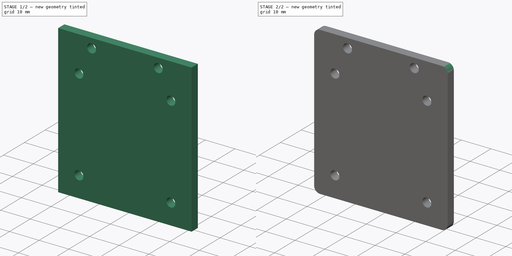
[diagram: build sequence overview — one tinted view per stage of 2, left to right]
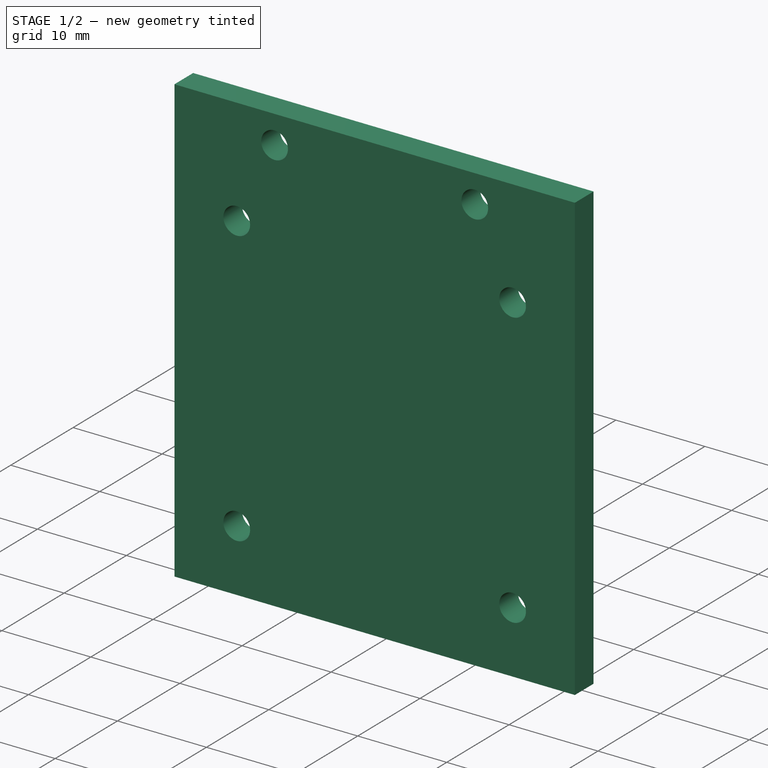
[diagram: stage 1 of 2 — iso view after this stage's code; geometry added in this stage tinted green]
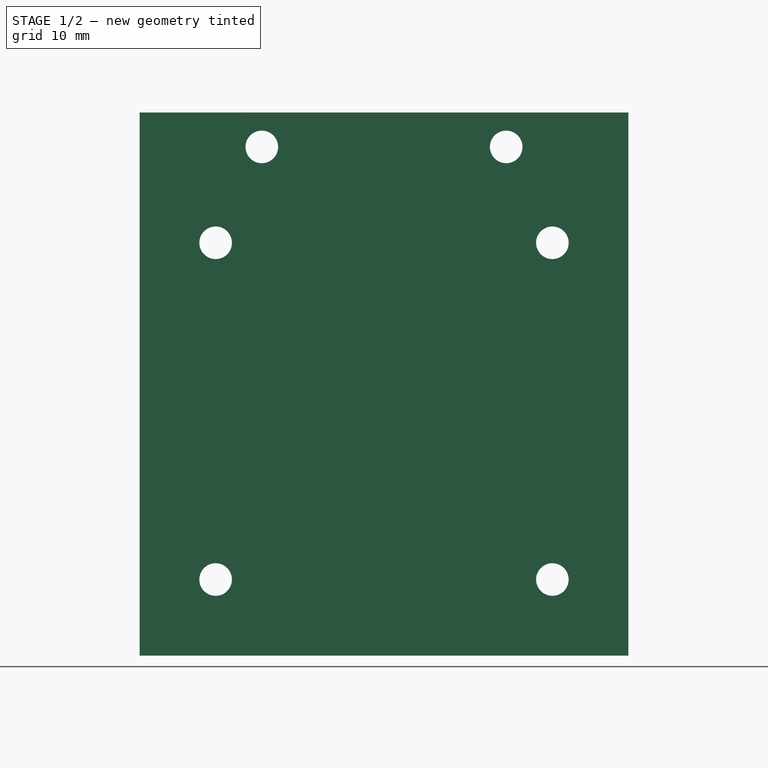
[diagram: stage 1 of 2 — front view after this stage's code; geometry added in this stage tinted green]
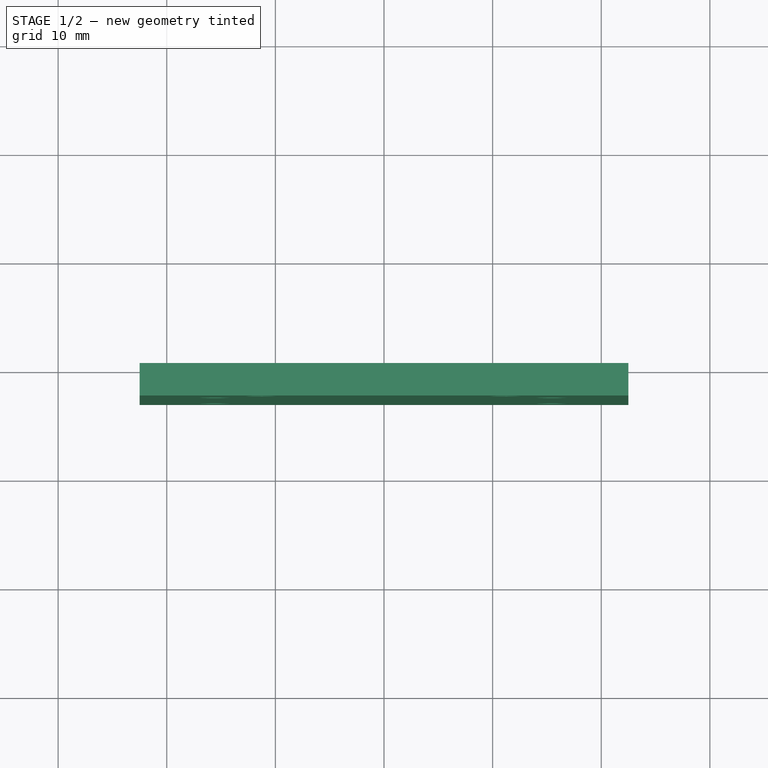
[diagram: stage 1 of 2 — top view after this stage's code; geometry added in this stage tinted green]
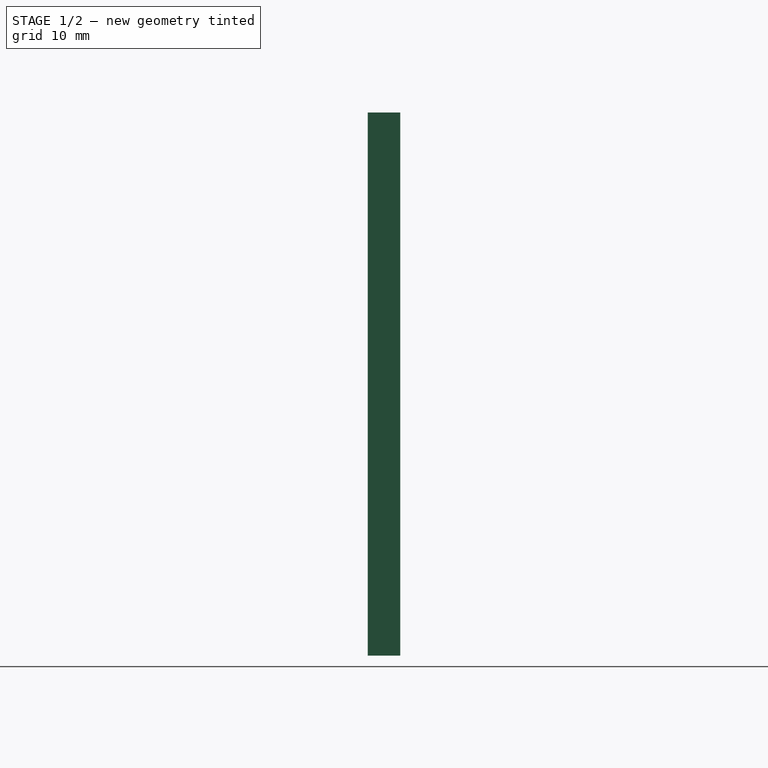
[diagram: stage 1 of 2 — right view after this stage's code; geometry added in this stage tinted green]
FCSTD DOCUMENT  (FreeCAD 1.1R20260325 (Git shallow))
Label: NEMA17 Mount
License: Creative Commons Attribution 4.0
LicenseURL: https://creativecommons.org/licenses/by/4.0/
objects: App::Point×1, Sketcher::SketchObject×1, PartDesign::Pad×1, PartDesign::Fillet×1, PartDesign::Body×1
note: 9 computed .brp shape members not serialized (recipe doc carries the construction recipe); baked Part::Feature solids carry a one-line shape summary decoded from their .brp

FEATURE [App::Point] Origin001
  Role = Origin
FEATURE [Sketcher::SketchObject] Sketch
  ArcFitTolerance = 1e-06
  AttachmentSupport = -> [Origin]
  ExternalTypes = [0]
  FullyConstrained = true
  MakeInternals = true
  MapMode = 5
  Placement = pos=(0,0,0) rot=(1,0,0;1.5708rad)
  _ExternalGeoVersion = 1
  sketch-geometry (30):
    g0: LineSegment [constr] StartX=-21.15 StartY=-21.15 StartZ=0 EndX=21.15 EndY=-21.15 EndZ=0
    g1: LineSegment [constr] StartX=21.15 StartY=-21.15 StartZ=0 EndX=21.15 EndY=21.15 EndZ=0
    g2: LineSegment [constr] StartX=21.15 StartY=21.15 StartZ=0 EndX=-21.15 EndY=21.15 EndZ=0
    g3: LineSegment [constr] StartX=-21.15 StartY=21.15 StartZ=0 EndX=-21.15 EndY=-21.15 EndZ=0
    g4: GeomPoint [constr] X=0 Y=0 Z=0
    g5: LineSegment [constr] StartX=-15.5 StartY=-15.5 StartZ=0 EndX=15.5 EndY=-15.5 EndZ=0
    g6: LineSegment [constr] StartX=15.5 StartY=-15.5 StartZ=0 EndX=15.5 EndY=15.5 EndZ=0
    g7: LineSegment [constr] StartX=15.5 StartY=15.5 StartZ=0 EndX=-15.5 EndY=15.5 EndZ=0
    g8: LineSegment [constr] StartX=-15.5 StartY=15.5 StartZ=0 EndX=-15.5 EndY=-15.5 EndZ=0
    g9: GeomPoint [constr] X=0 Y=0 Z=0
    g10: GeomPoint X=15.5 Y=15.5 Z=0
    g11: GeomPoint X=-15.5 Y=15.5 Z=0
    g12: GeomPoint X=-15.5 Y=-15.5 Z=0
    g13: GeomPoint X=15.5 Y=-15.5 Z=0
    g14: Circle CenterX=-15.5 CenterY=15.5 CenterZ=0 NormalX=0 NormalY=0 NormalZ=1 AngleXU=0 Radius=1.5
    g15: Circle CenterX=15.5 CenterY=15.5 CenterZ=0 NormalX=0 NormalY=0 NormalZ=1 AngleXU=0 Radius=1.5
    g16: Circle CenterX=15.5 CenterY=-15.5 CenterZ=0 NormalX=0 NormalY=0 NormalZ=1 AngleXU=0 Radius=1.5
    g17: Circle CenterX=-15.5 CenterY=-15.5 CenterZ=0 NormalX=0 NormalY=0 NormalZ=1 AngleXU=0 Radius=1.5
    g18: LineSegment StartX=-22.5 StartY=27.5 StartZ=0 EndX=-22.5 EndY=-22.5 EndZ=0
    g19: LineSegment StartX=-22.5 StartY=-22.5 StartZ=0 EndX=22.5 EndY=-22.5 EndZ=0
    g20: LineSegment StartX=22.5 StartY=-22.5 StartZ=0 EndX=22.5 EndY=27.5 EndZ=0
    g21: LineSegment StartX=22.5 StartY=27.5 StartZ=0 EndX=-22.5 EndY=27.5 EndZ=0
    g22: LineSegment [constr] StartX=-21.15 StartY=-21.15 StartZ=0 EndX=-22.5 EndY=-21.15 EndZ=0
    g23: LineSegment [constr] StartX=-21.15 StartY=-21.15 StartZ=0 EndX=-21.15 EndY=-22.5 EndZ=0
    g24: Circle CenterX=-11.25 CenterY=24.325 CenterZ=0 NormalX=0 NormalY=0 NormalZ=1 AngleXU=0 Radius=1.5
    g25: Circle CenterX=11.25 CenterY=24.325 CenterZ=0 NormalX=0 NormalY=0 NormalZ=1 AngleXU=0 Radius=1.5
    g26: LineSegment [constr] StartX=-11.25 StartY=24.325 StartZ=0 EndX=-22.5 EndY=24.325 EndZ=0
    g27: LineSegment [constr] StartX=-11.25 StartY=24.325 StartZ=0 EndX=0 EndY=24.325 EndZ=0
    g28: LineSegment [constr] StartX=-11.25 StartY=24.325 StartZ=0 EndX=-11.25 EndY=27.5 EndZ=0
    g29: LineSegment [constr] StartX=-11.25 StartY=24.325 StartZ=0 EndX=-11.25 EndY=21.15 EndZ=0
  constraints (70):
    c: Coincident(g0,g1)
    c: Coincident(g1,g2)
    c: Coincident(g2,g3)
    c: Coincident(g3,g0)
    c: Horizontal(g0)
    c: Horizontal(g2)
    c: Vertical(g1)
    c: Vertical(g3)
    c: Symmetric(g2,g0,g4)
    c: Coincident(g4,g-1)
    c: Equal(g2,g1)
    c: Distance(g2,g2) = 42.3
    c: Coincident(g5,g6)
    c: Coincident(g6,g7)
    c: Coincident(g7,g8)
    c: Coincident(g8,g5)
    c: Horizontal(g5)
    c: Horizontal(g7)
    c: Vertical(g6)
    c: Vertical(g8)
    c: Symmetric(g7,g5,g9)
    c: Coincident(g9,g4)
    c: Equal(g7,g6)
    c: DistanceX(g7,g7) = 31
    c: Coincident(g10,g6)
    c: Coincident(g11,g7)
    c: Coincident(g12,g5)
    c: Coincident(g13,g5)
    c: Diameter(g14) = 3
    c: Coincident(g14,g7)
    c: Coincident(g15,g6)
    c: Coincident(g16,g5)
    c: Coincident(g17,g5)
    c: Equal(g14,g15)
    c: Equal(g15,g16)
    c: Equal(g16,g17)
    c: Coincident(g18,g19)
    c: Coincident(g19,g20)
    c: Coincident(g20,g21)
    c: Coincident(g21,g18)
    c: Vertical(g18)
    c: Vertical(g20)
    c: Horizontal(g19)
    c: Symmetric(g18,g20,g-2)
    c: Coincident(g22,g0)
    c: PointOnObject(g22,g18)
    c: Coincident(g23,g0)
    c: PointOnObject(g23,g19)
    c: Vertical(g23)
    c: Horizontal(g22)
    c: Equal(g22,g23)
    c: Distance(g19,g19) = 45
    c: Equal(g24,g25)
    c: Symmetric(g24,g25,g-2)
    c: Diameter(g24) = 3
    c: Coincident(g26,g24)
    c: PointOnObject(g26,g18)
    c: Horizontal(g26)
    c: Coincident(g27,g24)
    c: Horizontal(g27)
    c: Coincident(g28,g24)
    c: PointOnObject(g28,g21)
    c: Vertical(g28)
    c: Coincident(g29,g24)
    c: PointOnObject(g29,g2)
    c: Vertical(g29)
    c: Equal(g26,g27)
    c: Equal(g28,g29)
    c: PointOnObject(g27,g-2)
    c: DistanceY(g20,g20) = 50
FEATURE [PartDesign::Pad] Pad
  Direction = (0,-1,2e-16)
  Length = 3
  Length2 = 10
  Profile = -> Sketch
  ReferenceAxis = -> Sketch [N_Axis]
  Refine = true
  SideType = 0
  Suppressed = false
  Type = 0
  Type2 = 0
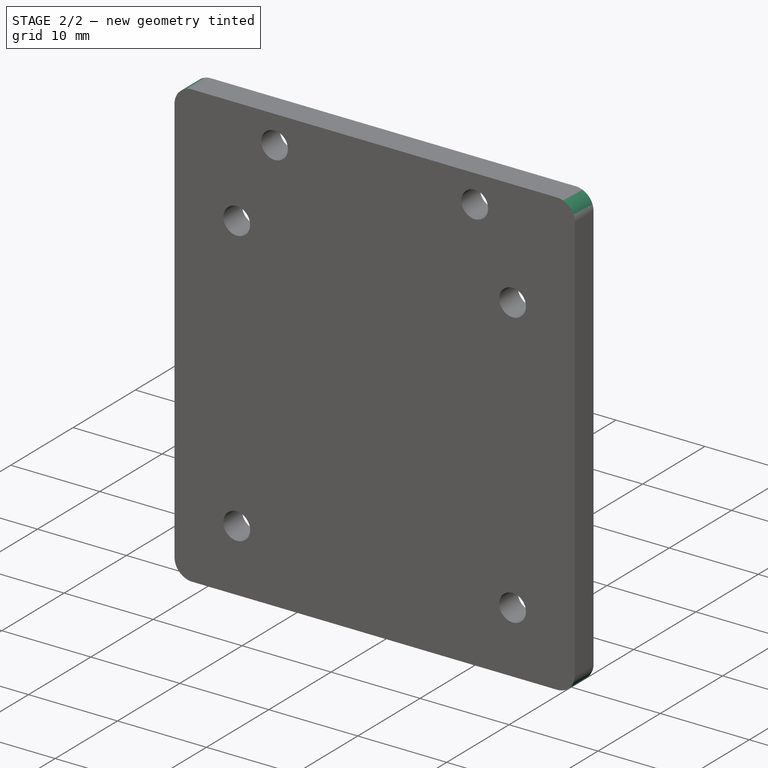
[diagram: stage 2 of 2 — iso view after this stage's code; geometry added in this stage tinted green]
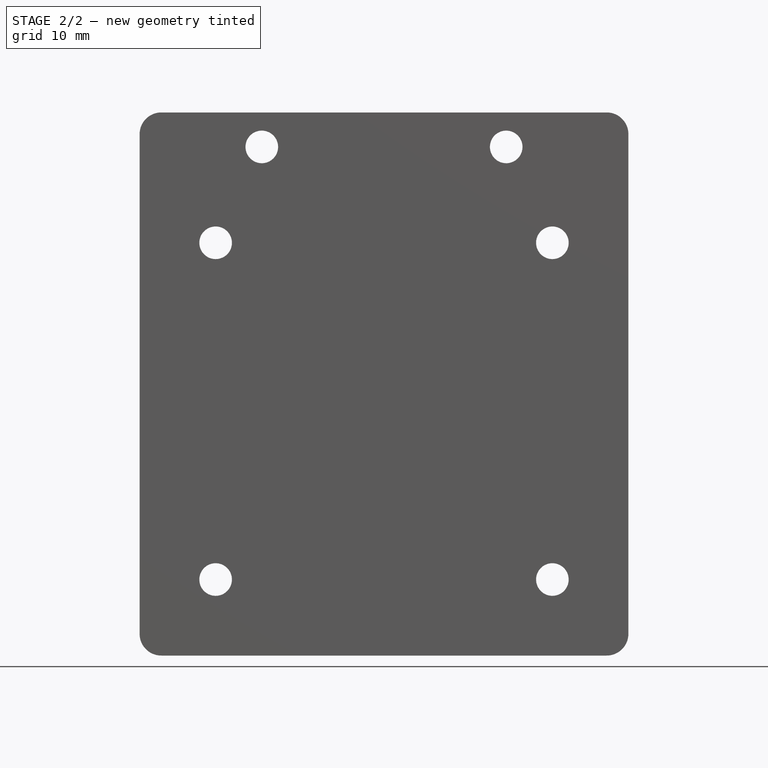
[diagram: stage 2 of 2 — front view after this stage's code; geometry added in this stage tinted green]
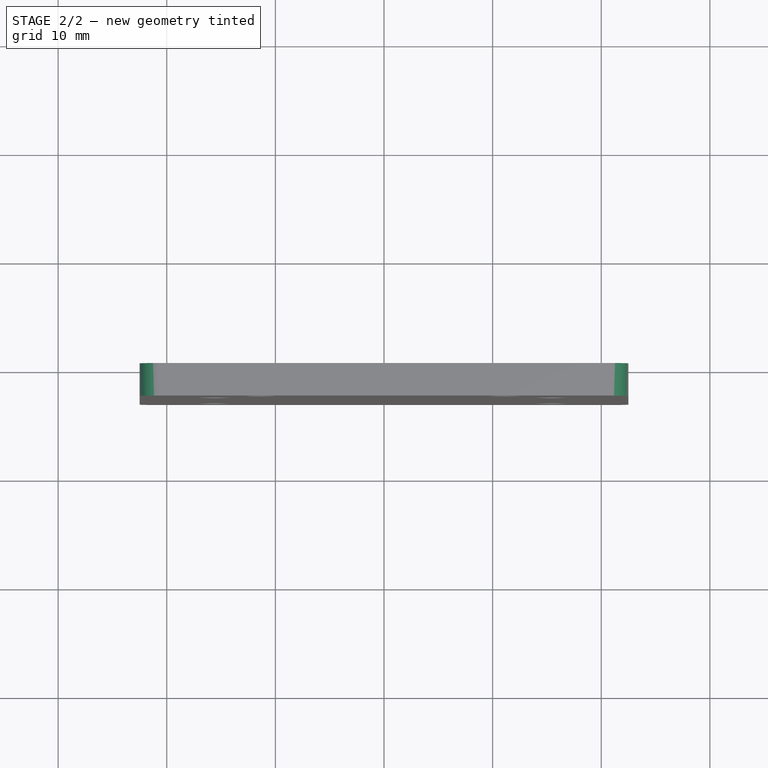
[diagram: stage 2 of 2 — top view after this stage's code; geometry added in this stage tinted green]
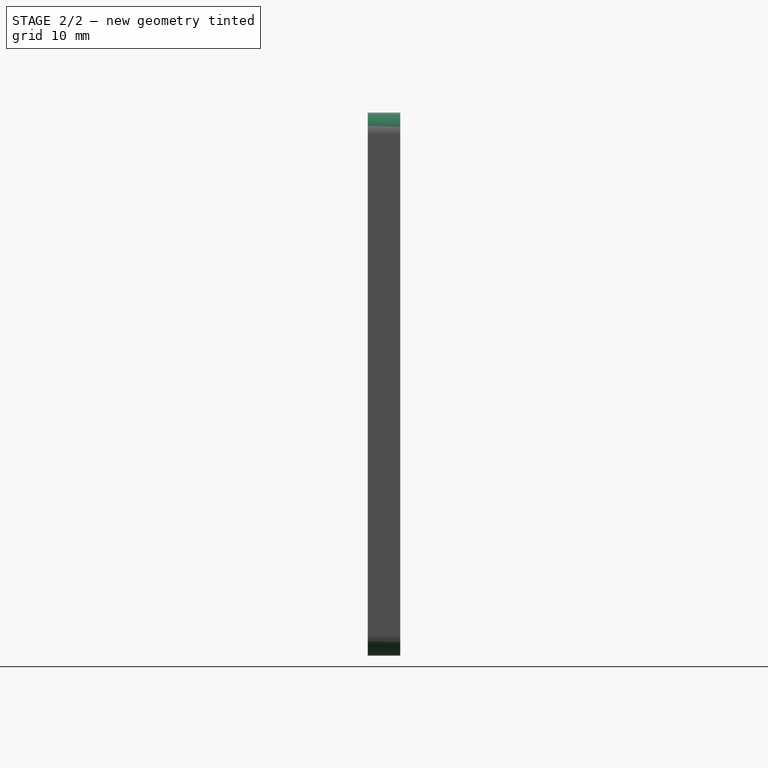
[diagram: stage 2 of 2 — right view after this stage's code; geometry added in this stage tinted green]
FEATURE [PartDesign::Fillet] Fillet
  Base = -> Pad [Edge8,Edge5,Edge2,Edge1]
  BaseFeature = -> Pad
  Radius = 2
  Refine = true
  SupportTransform = false
  Suppressed = false
  UseAllEdges = false
FEATURE [PartDesign::Body] Body
  AllowCompound = false
  Group = -> [Sketch,Pad,Fillet]
  Origin = -> Origin
  Tip = -> Fillet
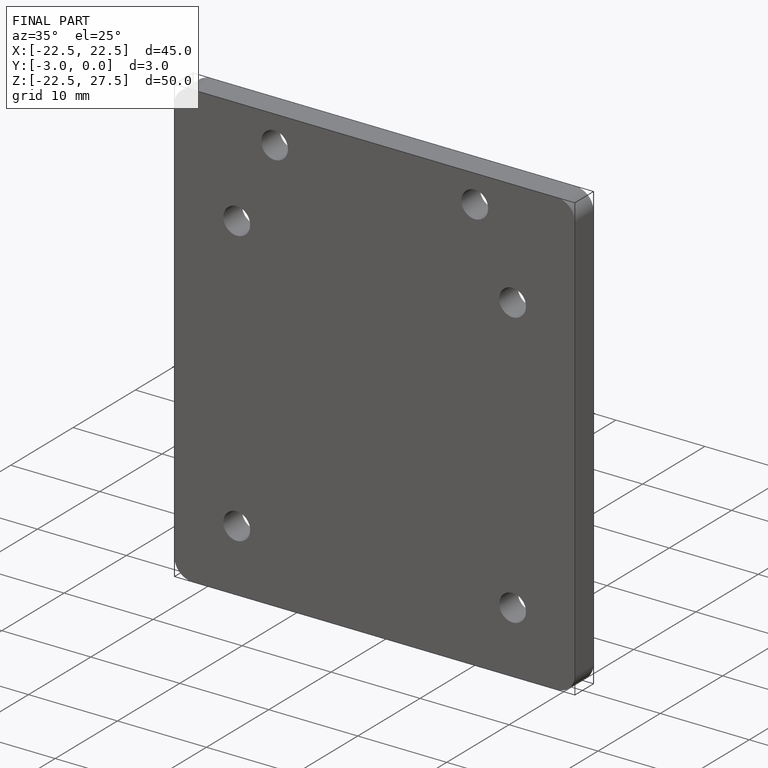
[diagram: finished part — iso view with bounding-box wireframe]
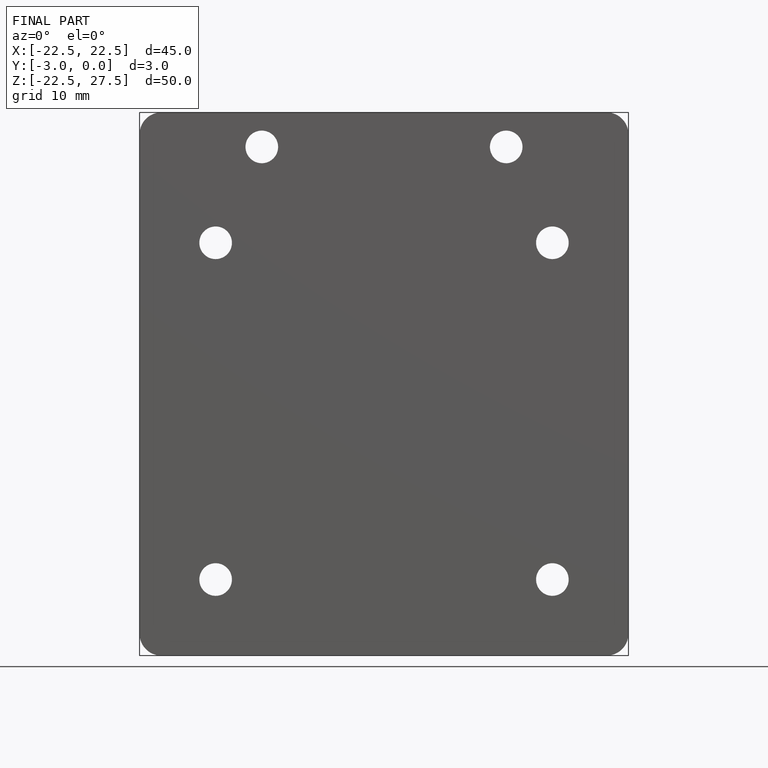
[diagram: finished part — front view with bounding-box wireframe]
